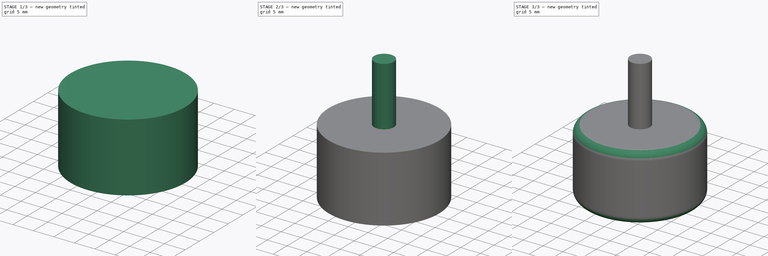
[diagram: build sequence overview — one tinted view per stage of 3, left to right]
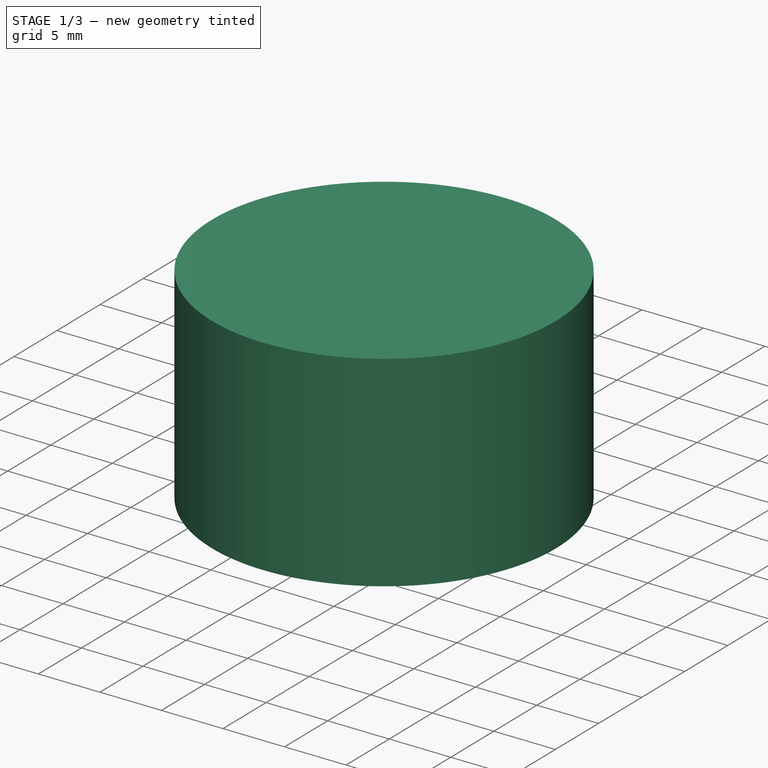
[diagram: stage 1 of 3 — iso view after this stage's code; geometry added in this stage tinted green]
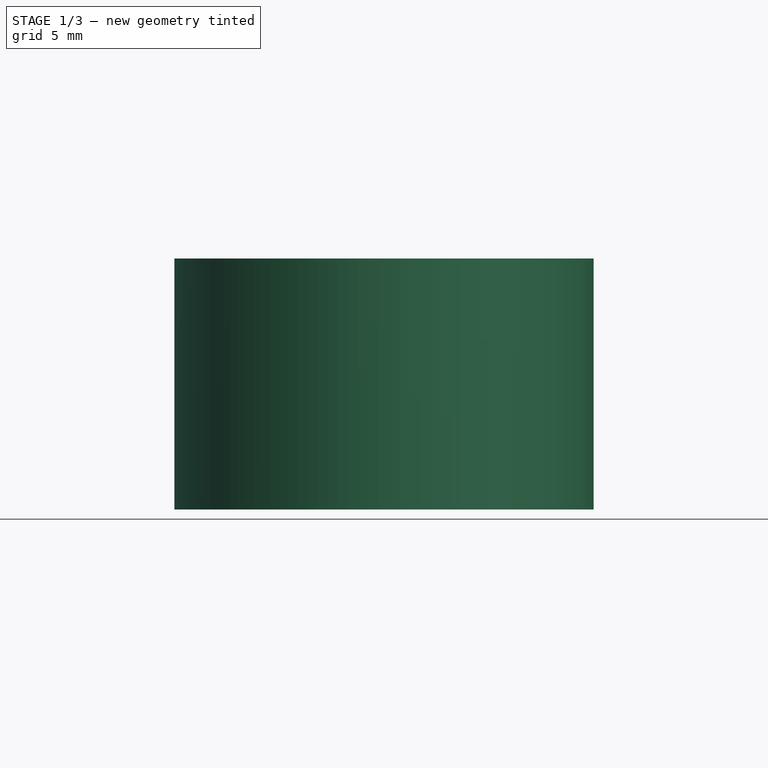
[diagram: stage 1 of 3 — front view after this stage's code; geometry added in this stage tinted green]
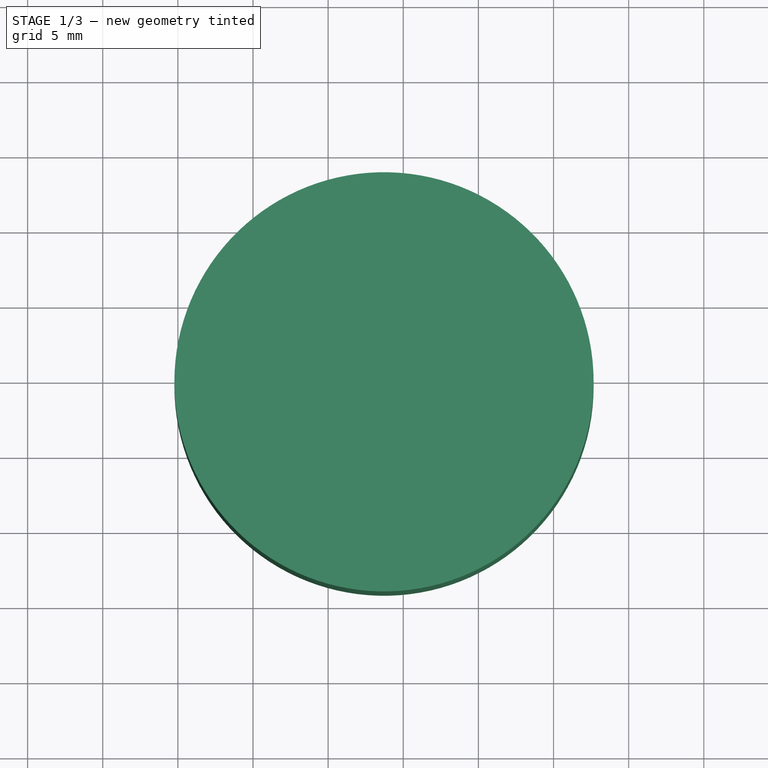
[diagram: stage 1 of 3 — top view after this stage's code; geometry added in this stage tinted green]
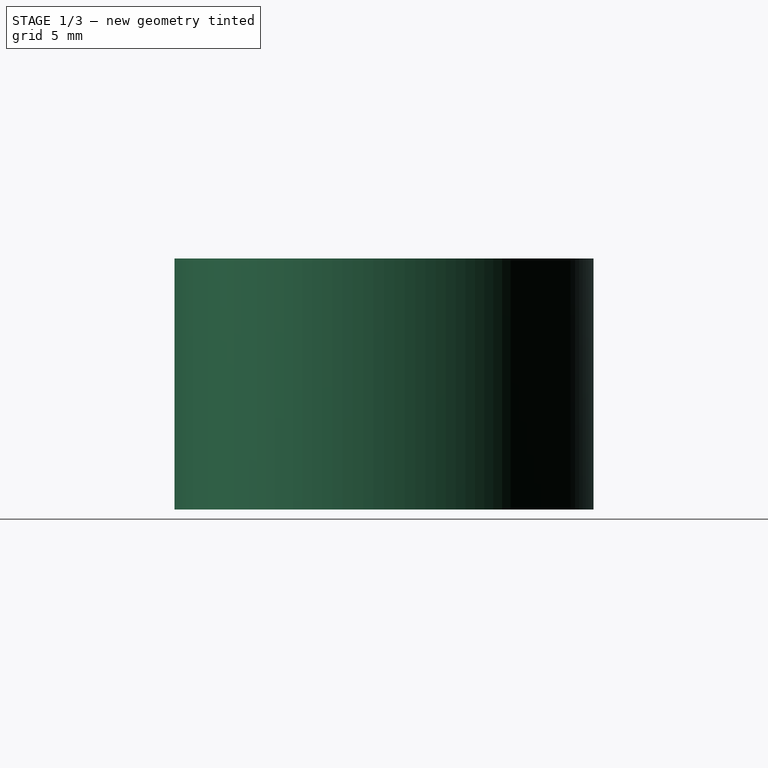
[diagram: stage 1 of 3 — right view after this stage's code; geometry added in this stage tinted green]
FCSTD DOCUMENT  (FreeCAD 0.16R6706 (Git))
Label: Moteur_20170119
License: All rights reserved
LicenseURL: http://en.wikipedia.org/wiki/All_rights_reserved
objects: Sketcher::SketchObject×3, PartDesign::Pad×3, PartDesign::Fillet×2
note: 11 computed .brp shape members not serialized (recipe doc carries the construction recipe); baked Part::Feature solids carry a one-line shape summary decoded from their .brp

FEATURE [Sketcher::SketchObject] Sketch
  sketch-geometry (7):
    g0: Circle CenterX=-16.2828 CenterY=14.793 CenterZ=0 NormalX=0 NormalY=0 NormalZ=1 Radius=13.95
    g1: Circle CenterX=-25.2698 CenterY=17.8724 CenterZ=0 NormalX=0 NormalY=0 NormalZ=1 Radius=1.5
    g2: Circle CenterX=-18.8759 CenterY=7.22494 CenterZ=0 NormalX=0 NormalY=0 NormalZ=1 Radius=1.5
    g3: Circle CenterX=-7.29569 CenterY=11.7136 CenterZ=0 NormalX=0 NormalY=0 NormalZ=1 Radius=1.5
    g4: Circle CenterX=-13.6896 CenterY=22.3611 CenterZ=0 NormalX=0 NormalY=0 NormalZ=1 Radius=1.5
    g5: LineSegment [constr] StartX=-18.8759 StartY=7.22494 StartZ=0 EndX=-13.6896 EndY=22.3611 EndZ=0
    g6: LineSegment [constr] StartX=-25.2698 StartY=17.8724 StartZ=0 EndX=-7.29569 EndY=11.7136 EndZ=0
  constraints (15):
    c: Coincident(g1,g6)
    c: Coincident(g3,g6)
    c: Coincident(g4,g5)
    c: Coincident(g2,g5)
    c: Symmetric(g4,g2,g6)
    c: Symmetric(g1,g3,g5)
    c: PointOnObject(g0,g6)
    c: PointOnObject(g0,g5)
    c: Radius(g4) = 1.5
    c: Radius(g2) = 1.5
    c: Radius(g1) = 1.5
    c: Radius(g3) = 1.5
    c: Distance(g5) = 16
    c: Distance(g6) = 19
    c: Radius(g0) = 13.95
FEATURE [PartDesign::Pad] Pad  label="Culot"
  Length = 5
  Length2 = 100
  Sketch = -> Sketch
  Type = 0
FEATURE [Sketcher::SketchObject] Sketch001
  ExternalGeometry = -> [Pad]
  Placement = pos=(0,0,5) rot=(0,0,1;0rad)
  Support = -> Pad [Face7]
  sketch-geometry (1):
    g0: Circle CenterX=-16.2828 CenterY=14.793 CenterZ=0 NormalX=0 NormalY=0 NormalZ=1 Radius=13.95
  constraints (2):
    c: Tangent(g0,g-3)
    c: Coincident(g-3,g0)
FEATURE [PartDesign::Pad] Pad001
  Length = 11.7
  Length2 = 100
  Sketch = -> Sketch001
  Type = 0
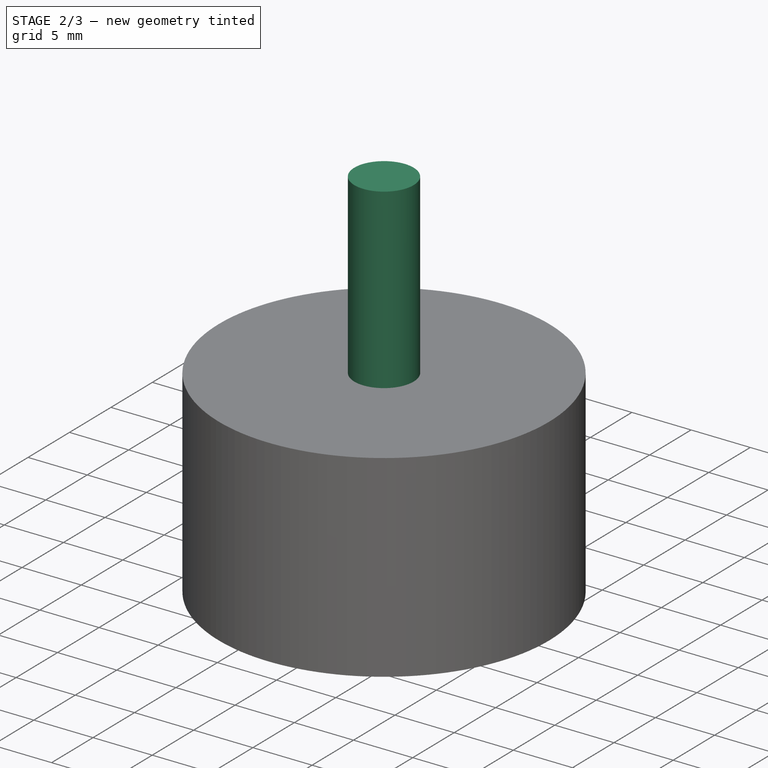
[diagram: stage 2 of 3 — iso view after this stage's code; geometry added in this stage tinted green]
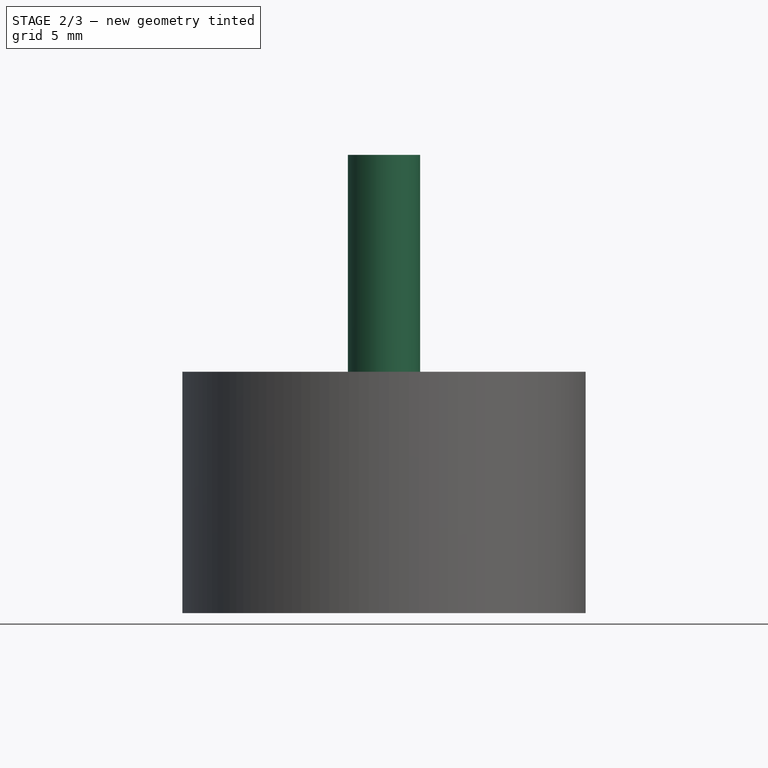
[diagram: stage 2 of 3 — front view after this stage's code; geometry added in this stage tinted green]
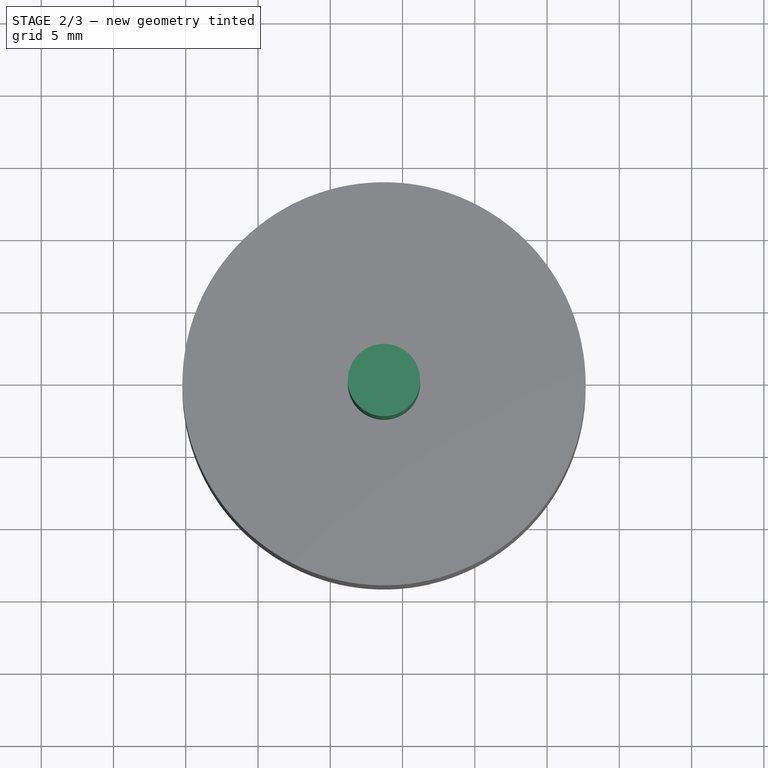
[diagram: stage 2 of 3 — top view after this stage's code; geometry added in this stage tinted green]
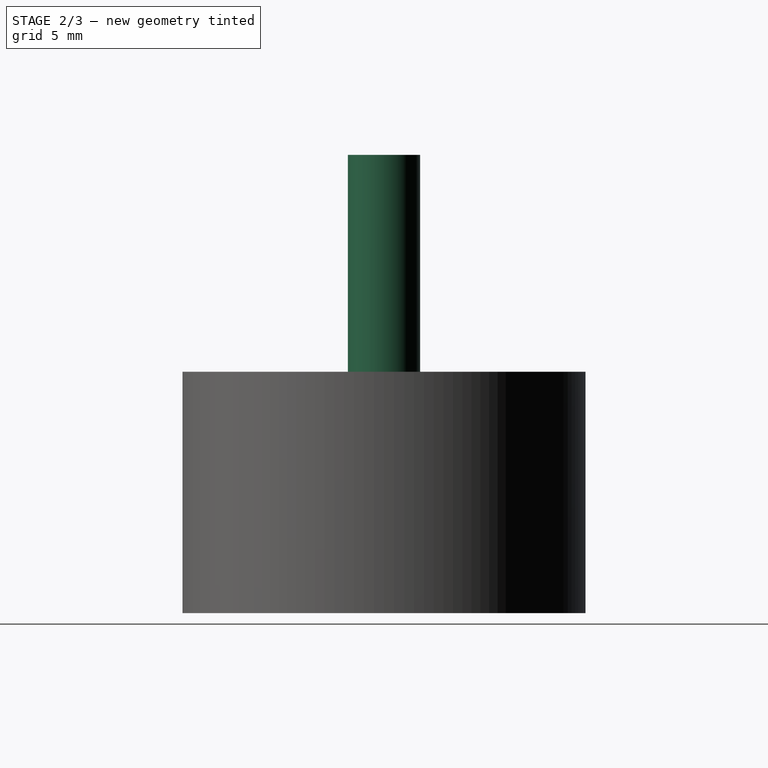
[diagram: stage 2 of 3 — right view after this stage's code; geometry added in this stage tinted green]
FEATURE [Sketcher::SketchObject] Sketch002
  ExternalGeometry = -> [Pad001]
  Placement = pos=(0,0,16.7) rot=(0,0,1;0rad)
  Support = -> Pad001 [Face12]
  sketch-geometry (1):
    g0: Circle CenterX=-16.2828 CenterY=14.793 CenterZ=0 NormalX=0 NormalY=0 NormalZ=1 Radius=2.5
  constraints (2):
    c: Radius(g0) = 2.5
    c: Coincident(g0,g-3)
FEATURE [PartDesign::Pad] Pad002
  Length = 15
  Length2 = 100
  Sketch = -> Sketch002
  Type = 0
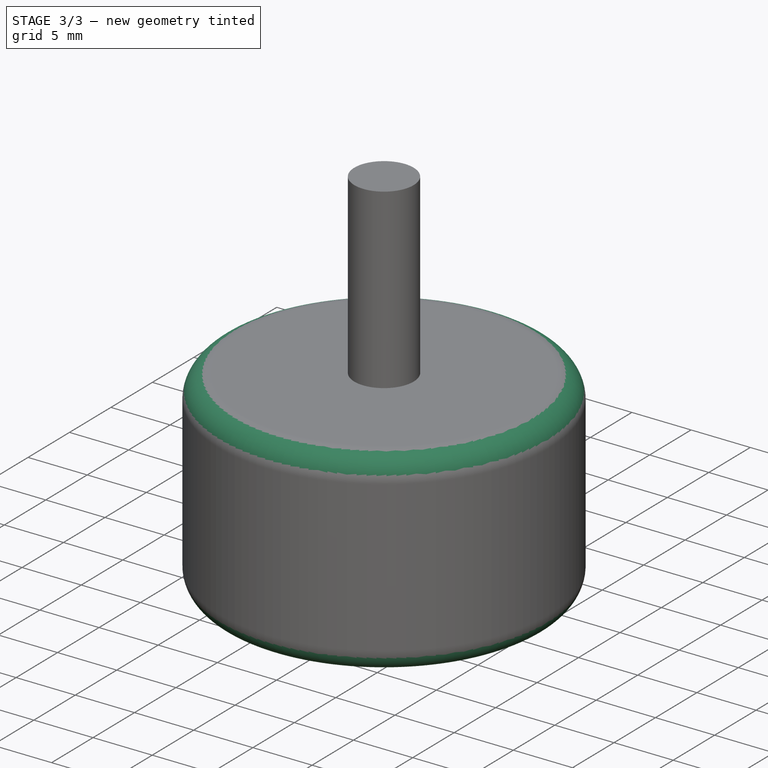
[diagram: stage 3 of 3 — iso view after this stage's code; geometry added in this stage tinted green]
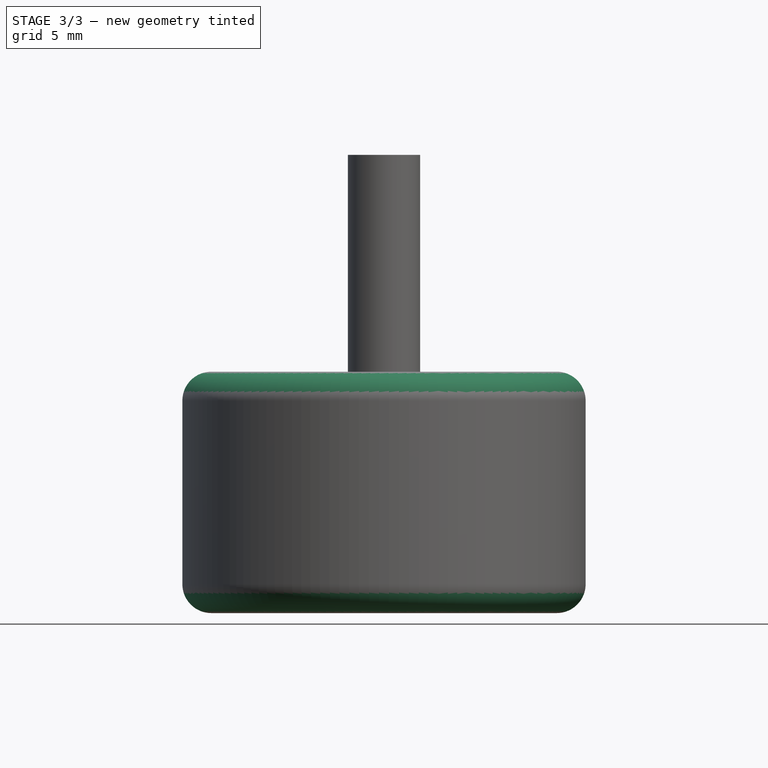
[diagram: stage 3 of 3 — front view after this stage's code; geometry added in this stage tinted green]
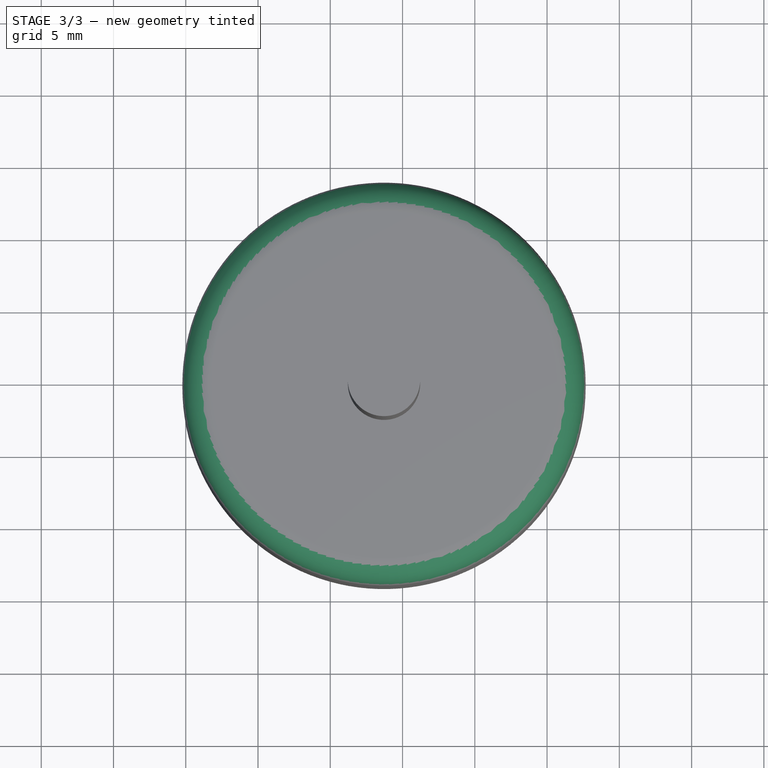
[diagram: stage 3 of 3 — top view after this stage's code; geometry added in this stage tinted green]
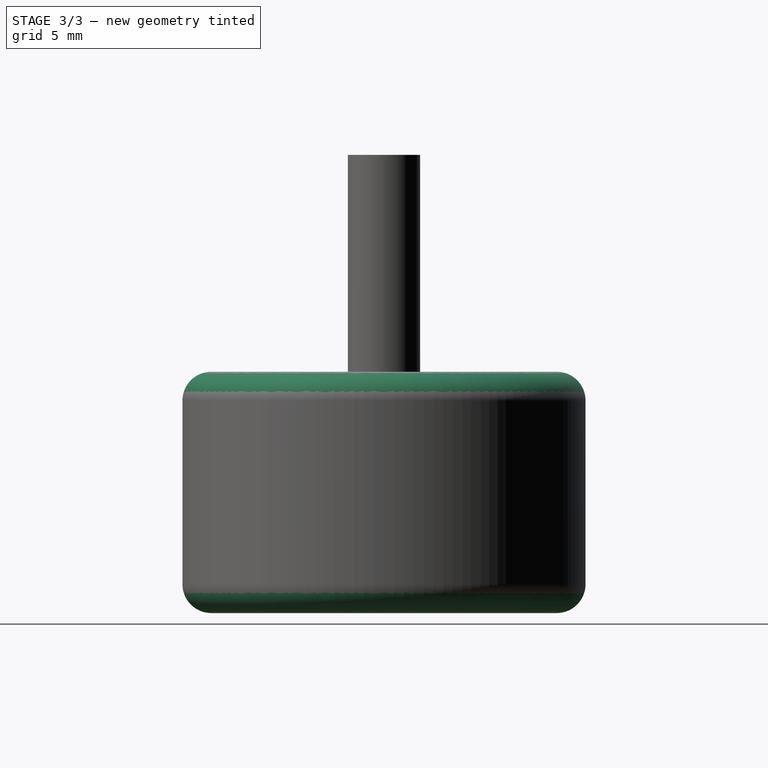
[diagram: stage 3 of 3 — right view after this stage's code; geometry added in this stage tinted green]
FEATURE [PartDesign::Fillet] Fillet
  Base = -> Pad002 [Edge17]
  Radius = 2
FEATURE [PartDesign::Fillet] Fillet001
  Base = -> Fillet [Edge6]
  Radius = 2
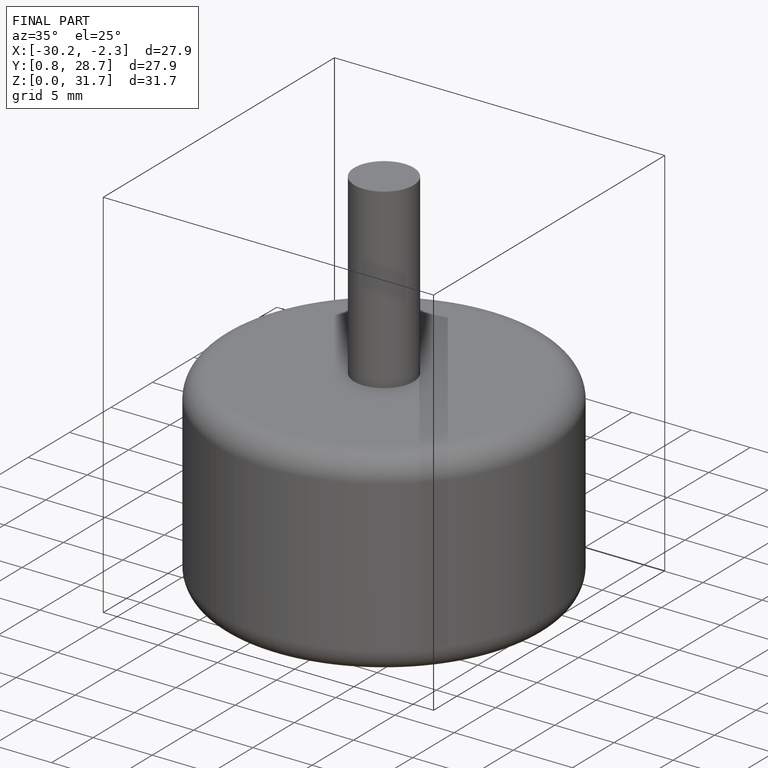
[diagram: finished part — iso view with bounding-box wireframe]
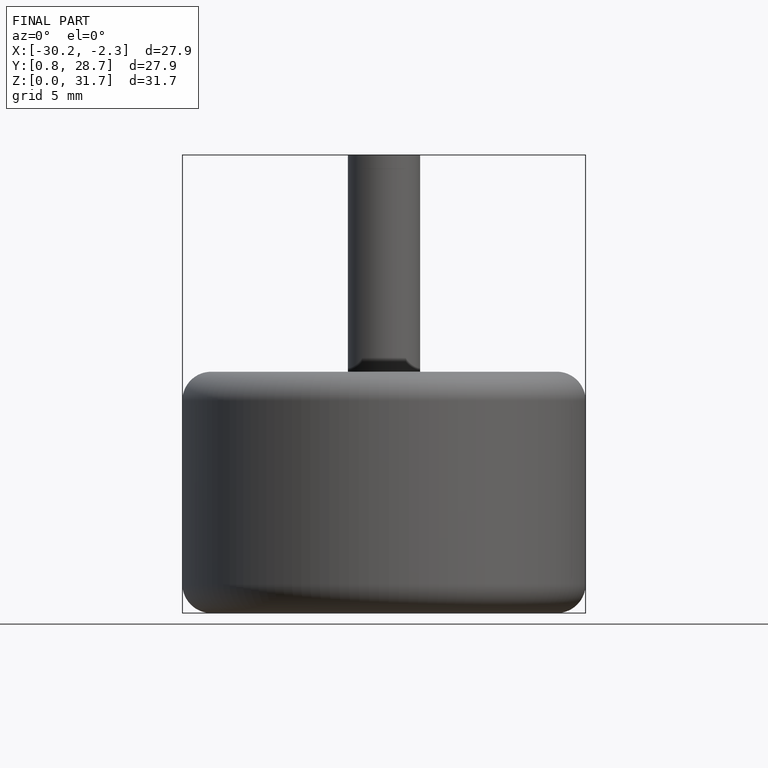
[diagram: finished part — front view with bounding-box wireframe]
